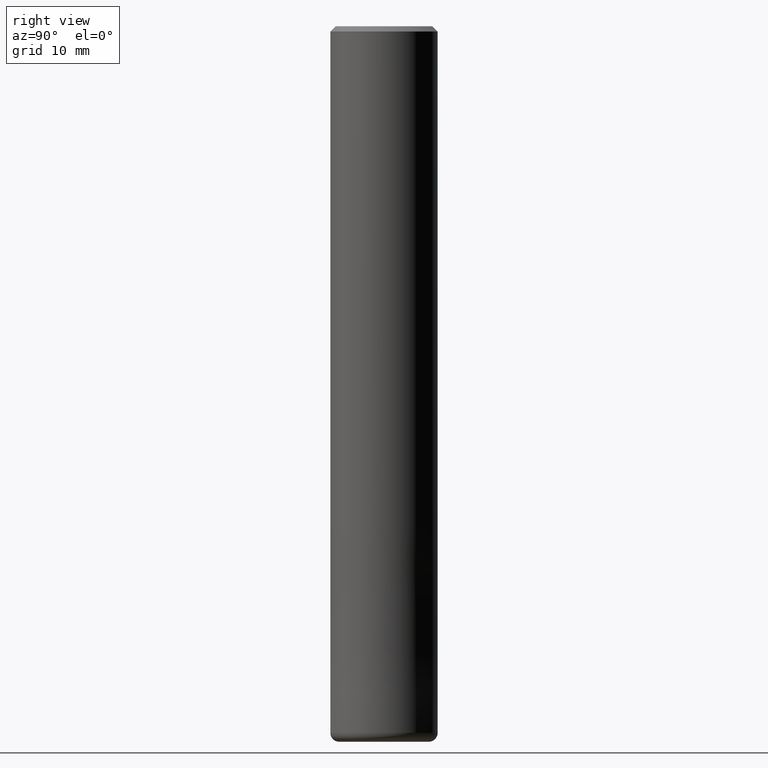
[diagram: clean part render]
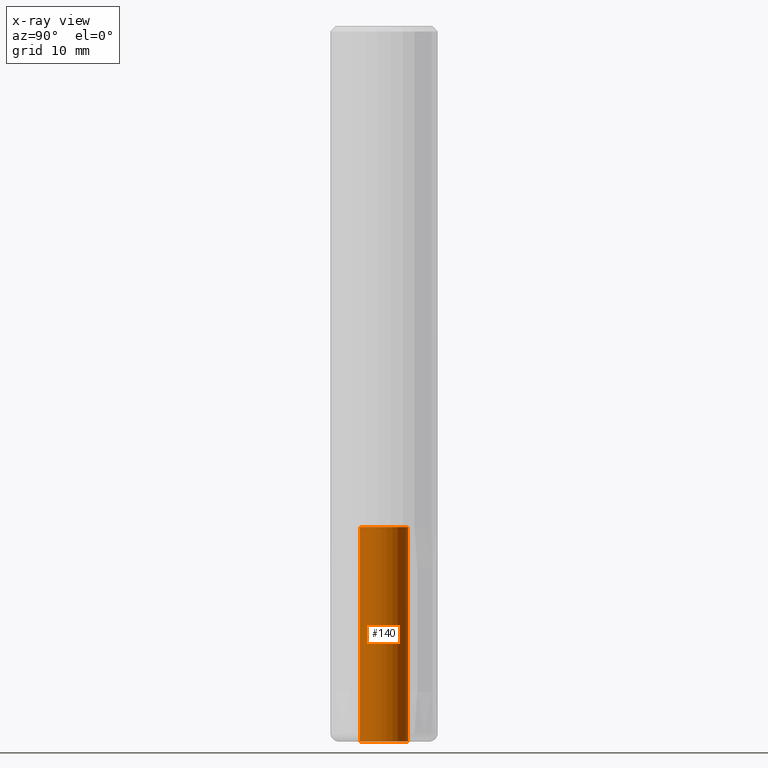
[diagram: x-ray — body ghosted, one internal face saturated and labeled with its STEP entity id]
A machine part, right view, then the same camera in x-ray: the body is ghosted and one INTERNAL B-rep face — a face not visible from any outside direction — is saturated and labeled: STEP entity #140.
In plain terms, the highlighted cylindrical surface (edge-blend (fillet) strip) has radius 2.7 mm, axis along (-0, -0, 1).
Its self-contained STEP definition (entity closure, byte-faithful):
#122=VERTEX_POINT('',#287);
#126=EDGE_CURVE('',#122,#236,#291,.T.);
#140=ADVANCED_FACE('',(#306),#307,.F.);
#154=EDGE_CURVE('',#230,#236,#323,.T.);
#160=EDGE_CURVE('',#230,#218,#329,.T.);
#170=EDGE_CURVE('',#218,#122,#340,.T.);
#218=VERTEX_POINT('',#396);
#230=VERTEX_POINT('',#408);
#236=VERTEX_POINT('',#415);
#287=CARTESIAN_POINT('',(3.30643715532042E-016,-2.7,-80.0));
#291=LINE('',#470,#471);
#306=FACE_OUTER_BOUND('',#489,.T.);
#307=CYLINDRICAL_SURFACE('',#490,2.7);
#323=CIRCLE('',#509,2.7);
#329=LINE('',#518,#519);
#340=CIRCLE('',#532,2.7);
#396=CARTESIAN_POINT('',(0.0,2.7,-80.0));
#408=CARTESIAN_POINT('',(0.0,2.7,-56.0));
#415=CARTESIAN_POINT('',(3.30643715532042E-016,-2.7,-56.0));
#470=CARTESIAN_POINT('',(3.30643715532042E-016,-2.7,-68.0));
#471=VECTOR('',#682,1.0);
#489=EDGE_LOOP('',(#696,#697,#698,#699));
#490=AXIS2_PLACEMENT_3D('',#700,#701,#702);
#509=AXIS2_PLACEMENT_3D('',#723,#724,#725);
#518=CARTESIAN_POINT('',(-3.30643715532042E-016,2.7,-68.0));
#519=VECTOR('',#732,1.0);
#532=AXIS2_PLACEMENT_3D('',#744,#745,#746);
#682=DIRECTION('',(0.0,-0.0,1.0));
#696=ORIENTED_EDGE('',*,*,#160,.T.);
#697=ORIENTED_EDGE('',*,*,#170,.T.);
#698=ORIENTED_EDGE('',*,*,#126,.T.);
#699=ORIENTED_EDGE('',*,*,#154,.F.);
#700=CARTESIAN_POINT('',(0.0,0.0,-68.0));
#701=DIRECTION('',(-0.0,-0.0,1.0));
#702=DIRECTION('',(0.0,1.0,0.0));
#723=CARTESIAN_POINT('',(0.0,0.0,-56.0));
#724=DIRECTION('',(0.0,0.0,-1.0));
#725=DIRECTION('',(0.0,1.0,0.0));
#732=DIRECTION('',(0.0,-0.0,-1.0));
#744=CARTESIAN_POINT('',(0.0,0.0,-80.0));
#745=DIRECTION('',(0.0,0.0,-1.0));
#746=DIRECTION('',(0.0,1.0,0.0));